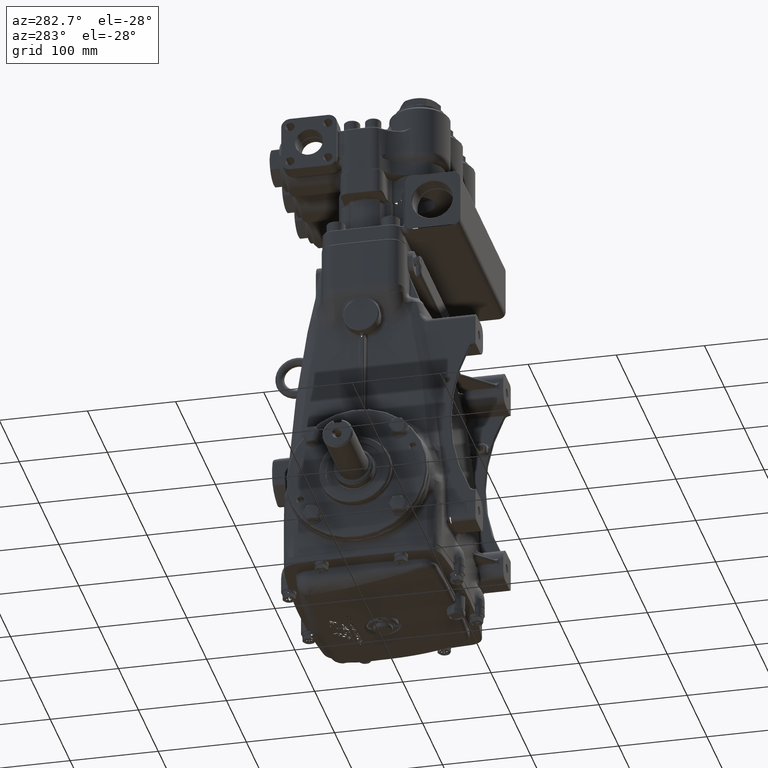
[diagram: clean part render]
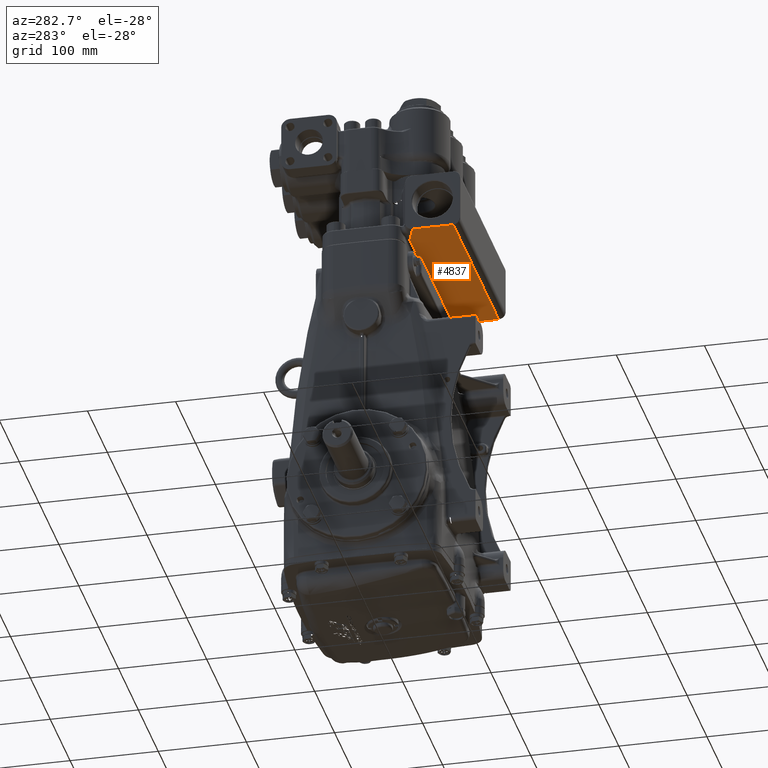
[diagram: same view with one face highlighted and labeled with its STEP entity id]
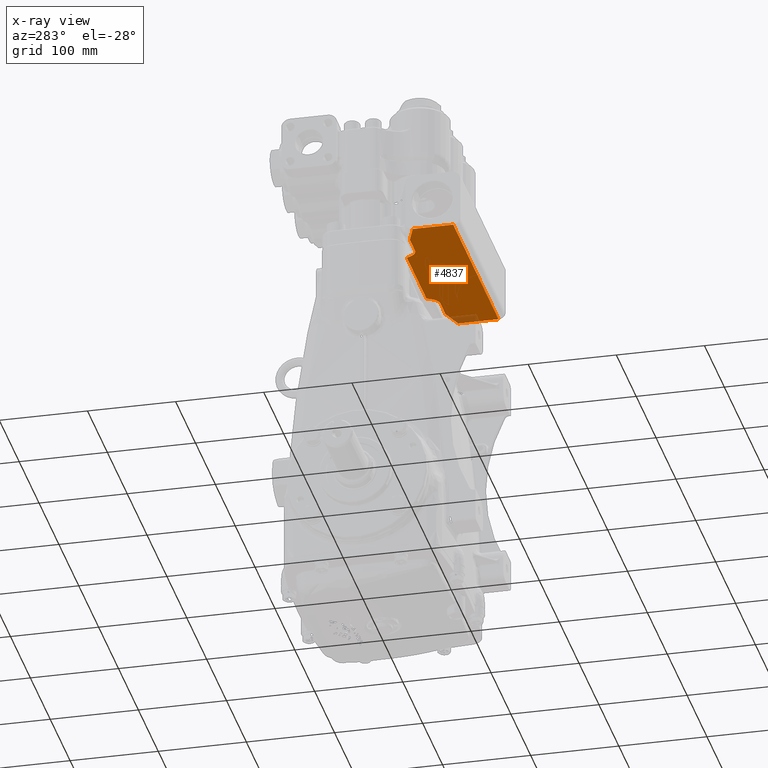
[diagram: x-ray of the same camera — body ghosted, the highlighted face saturated]
A machine part, auxiliary view. The second image highlights one B-rep face of the part: STEP entity #4837.
The next image is the same camera in x-ray: the body ghosted, the highlighted face saturated — about 3% of this face is hidden behind the body in this view.
In plain terms, the highlighted planar face has unit normal (0, 0, -1).
Its self-contained STEP definition (entity closure, byte-faithful):
#2245 = CARTESIAN_POINT ( 'NONE',  ( 1.899529946162071381, -1.507999999999999563, 12.14665354330708702 ) ) ;
#2764 = VECTOR ( 'NONE', #99863, 39.37007874015748143 ) ;
#2817 = CARTESIAN_POINT ( 'NONE',  ( 2.525204887489376659, -1.474299212598424669, 12.14665354330708702 ) ) ;
#4837 = ADVANCED_FACE ( 'NONE', ( #127277 ), #32326, .T. ) ;
#5422 = CIRCLE ( 'NONE', #82968, 0.5237007874015745523 ) ;
#5636 = VERTEX_POINT ( 'NONE', #127631 ) ;
#6317 = CARTESIAN_POINT ( 'NONE',  ( -1.899529946162071381, -1.578000000000000291, 12.14665354330708702 ) ) ;
#7455 = VERTEX_POINT ( 'NONE', #93261 ) ;
#7960 = DIRECTION ( 'NONE',  ( 1.000000000000000000, 3.904748746581762380E-16, -0.0000000000000000000 ) ) ;
#7992 = CARTESIAN_POINT ( 'NONE',  ( -2.525204887489376659, -1.474299212598425335, 12.14665354330708702 ) ) ;
#8950 = VERTEX_POINT ( 'NONE', #67890 ) ;
#11040 = ORIENTED_EDGE ( 'NONE', *, *, #51130, .T. ) ;
#12025 = LINE ( 'NONE', #54332, #35378 ) ;
#12054 = ORIENTED_EDGE ( 'NONE', *, *, #91010, .T. ) ;
#12247 = CARTESIAN_POINT ( 'NONE',  ( -4.500000000000001776, -2.346139744903616986, 12.14665354330708702 ) ) ;
#13395 = CARTESIAN_POINT ( 'NONE',  ( -4.499999999999995559, -4.466425196850395629, 12.14665354330708702 ) ) ;
#14324 = AXIS2_PLACEMENT_3D ( 'NONE', #74579, #116867, #21905 ) ;
#15300 = LINE ( 'NONE', #57595, #2764 ) ;
#15549 = CIRCLE ( 'NONE', #93090, 0.5237007874015745523 ) ;
#15555 = VERTEX_POINT ( 'NONE', #126395 ) ;
#15962 = VECTOR ( 'NONE', #20116, 39.37007874015748854 ) ;
#20116 = DIRECTION ( 'NONE',  ( 0.9396926207859083169, 0.3420201433256690460, 0.0000000000000000000 ) ) ;
#21347 = CARTESIAN_POINT ( 'NONE',  ( 4.514999999999995239, -1.507999999999998675, 12.14665354330708702 ) ) ;
#21591 = CARTESIAN_POINT ( 'NONE',  ( 2.525204887489377104, -1.997999999999999332, 12.14665354330708702 ) ) ;
#21905 = DIRECTION ( 'NONE',  ( -1.000000000000000000, 0.0000000000000000000, 0.0000000000000000000 ) ) ;
#22840 = VERTEX_POINT ( 'NONE', #70396 ) ;
#24314 = EDGE_CURVE ( 'NONE', #64799, #15555, #108185, .T. ) ;
#26602 = LINE ( 'NONE', #68858, #86732 ) ;
#27335 = CARTESIAN_POINT ( 'NONE',  ( 1.899529946162071381, -1.577999999999999625, 12.14665354330708702 ) ) ;
#29785 = LINE ( 'NONE', #72060, #57641 ) ;
#32326 = PLANE ( 'NONE',  #14324 ) ;
#34956 = EDGE_CURVE ( 'NONE', #80118, #65725, #5422, .T. ) ;
#35378 = VECTOR ( 'NONE', #96616, 39.37007874015748854 ) ;
#39072 = CIRCLE ( 'NONE', #116542, 0.07000000000000007605 ) ;
#39923 = DIRECTION ( 'NONE',  ( 0.0000000000000000000, -0.0000000000000000000, 1.000000000000000000 ) ) ;
#40515 = CARTESIAN_POINT ( 'NONE',  ( 4.514999999999995239, -4.151464566929133682, 12.14665354330708702 ) ) ;
#42582 = VECTOR ( 'NONE', #55710, 39.37007874015748143 ) ;
#43919 = EDGE_CURVE ( 'NONE', #8950, #112973, #47619, .T. ) ;
#45132 = DIRECTION ( 'NONE',  ( 0.0000000000000000000, -0.0000000000000000000, 1.000000000000000000 ) ) ;
#47619 = LINE ( 'NONE', #89917, #79550 ) ;
#48087 = EDGE_CURVE ( 'NONE', #22840, #8950, #29785, .T. ) ;
#48452 = AXIS2_PLACEMENT_3D ( 'NONE', #6317, #48638, #90944 ) ;
#48638 = DIRECTION ( 'NONE',  ( -0.0000000000000000000, 0.0000000000000000000, -1.000000000000000000 ) ) ;
#50928 = EDGE_CURVE ( 'NONE', #113162, #80118, #60663, .T. ) ;
#51130 = EDGE_CURVE ( 'NONE', #110238, #7455, #12025, .T. ) ;
#51208 = ORIENTED_EDGE ( 'NONE', *, *, #112342, .T. ) ;
#52719 = CARTESIAN_POINT ( 'NONE',  ( -2.071666701617698170, -1.736149606299210113, 12.14665354330708702 ) ) ;
#53888 = EDGE_CURVE ( 'NONE', #7455, #76682, #15549, .T. ) ;
#54332 = CARTESIAN_POINT ( 'NONE',  ( 3.864744036588173337, -4.841850652368357544, 12.14665354330708702 ) ) ;
#55710 = DIRECTION ( 'NONE',  ( -2.230079994827970186E-16, 1.000000000000000000, 0.0000000000000000000 ) ) ;
#55804 = CARTESIAN_POINT ( 'NONE',  ( -3.543493912062626983, -1.998000000000001553, 12.14665354330708702 ) ) ;
#57265 = EDGE_CURVE ( 'NONE', #76682, #22840, #15300, .T. ) ;
#57595 = CARTESIAN_POINT ( 'NONE',  ( 4.514999999999993463, -1.997999999999998222, 12.14665354330708702 ) ) ;
#57641 = VECTOR ( 'NONE', #114326, 39.37007874015748854 ) ;
#60663 = LINE ( 'NONE', #102932, #115047 ) ;
#63639 = DIRECTION ( 'NONE',  ( 1.000000000000000000, 1.438170532232914042E-16, -0.0000000000000000000 ) ) ;
#64194 = ORIENTED_EDGE ( 'NONE', *, *, #43919, .T. ) ;
#64799 = VERTEX_POINT ( 'NONE', #76959 ) ;
#65725 = VERTEX_POINT ( 'NONE', #52719 ) ;
#66648 = EDGE_CURVE ( 'NONE', #92477, #110238, #39072, .T. ) ;
#67890 = CARTESIAN_POINT ( 'NONE',  ( 4.499999999999993783, -2.346139744903616098, 12.14665354330708702 ) ) ;
#68858 = CARTESIAN_POINT ( 'NONE',  ( -1.607244036588244773, -0.9317459542816461937, 12.14665354330708702 ) ) ;
#69597 = DIRECTION ( 'NONE',  ( -0.0000000000000000000, 0.0000000000000000000, -1.000000000000000000 ) ) ;
#70396 = CARTESIAN_POINT ( 'NONE',  ( 3.543493912062612328, -1.997999999999998444, 12.14665354330708702 ) ) ;
#71572 = VERTEX_POINT ( 'NONE', #12247 ) ;
#72060 = CARTESIAN_POINT ( 'NONE',  ( 5.194691942078395464, -2.598986933804735333, 12.14665354330708702 ) ) ;
#72805 = LINE ( 'NONE', #115089, #15962 ) ;
#74579 = CARTESIAN_POINT ( 'NONE',  ( 4.514999999999995239, -4.466425196850393853, 12.14665354330708702 ) ) ;
#76682 = VERTEX_POINT ( 'NONE', #21591 ) ;
#76775 = CARTESIAN_POINT ( 'NONE',  ( -2.525204887489377104, -1.997999999999999776, 12.14665354330708702 ) ) ;
#76959 = CARTESIAN_POINT ( 'NONE',  ( -1.960151724426981490, -1.543000000000000149, 12.14665354330708702 ) ) ;
#77441 = ORIENTED_EDGE ( 'NONE', *, *, #50928, .T. ) ;
#78460 = EDGE_CURVE ( 'NONE', #65725, #64799, #26602, .T. ) ;
#79520 = CARTESIAN_POINT ( 'NONE',  ( 4.499999999999993783, -4.151464566929133682, 12.14665354330708702 ) ) ;
#79550 = VECTOR ( 'NONE', #132176, 39.37007874015748143 ) ;
#80118 = VERTEX_POINT ( 'NONE', #76775 ) ;
#82196 = DIRECTION ( 'NONE',  ( -1.000000000000000000, 0.0000000000000000000, 0.0000000000000000000 ) ) ;
#82792 = DIRECTION ( 'NONE',  ( -1.000000000000000000, 0.0000000000000000000, 0.0000000000000000000 ) ) ;
#82968 = AXIS2_PLACEMENT_3D ( 'NONE', #7992, #39923, #82196 ) ;
#83522 = VECTOR ( 'NONE', #63639, 39.37007874015748143 ) ;
#86732 = VECTOR ( 'NONE', #111133, 39.37007874015748854 ) ;
#87427 = DIRECTION ( 'NONE',  ( -1.000000000000000000, 0.0000000000000000000, 0.0000000000000000000 ) ) ;
#87545 = ORIENTED_EDGE ( 'NONE', *, *, #48087, .T. ) ;
#88012 = VECTOR ( 'NONE', #82792, 39.37007874015748143 ) ;
#89917 = CARTESIAN_POINT ( 'NONE',  ( 4.499999999999993783, -4.466425196850393853, 12.14665354330708702 ) ) ;
#90944 = DIRECTION ( 'NONE',  ( -1.000000000000000000, 0.0000000000000000000, 0.0000000000000000000 ) ) ;
#91010 = EDGE_CURVE ( 'NONE', #5636, #71572, #108377, .T. ) ;
#92477 = VERTEX_POINT ( 'NONE', #2245 ) ;
#93090 = AXIS2_PLACEMENT_3D ( 'NONE', #2817, #45132, #87427 ) ;
#93261 = CARTESIAN_POINT ( 'NONE',  ( 2.071666701617698170, -1.736149606299209447, 12.14665354330708702 ) ) ;
#93716 = ORIENTED_EDGE ( 'NONE', *, *, #130067, .T. ) ;
#94957 = ORIENTED_EDGE ( 'NONE', *, *, #24314, .T. ) ;
#96371 = EDGE_LOOP ( 'NONE', ( #87545, #64194, #93716, #12054, #51208, #77441, #116235, #130582, #94957, #121482, #128631, #11040, #104734, #115188 ) ) ;
#96616 = DIRECTION ( 'NONE',  ( 0.4999999999999896194, -0.8660254037844445918, -0.0000000000000000000 ) ) ;
#99863 = DIRECTION ( 'NONE',  ( 1.000000000000000000, 5.857123119872637654E-16, -0.0000000000000000000 ) ) ;
#102682 = EDGE_CURVE ( 'NONE', #15555, #92477, #116331, .T. ) ;
#102932 = CARTESIAN_POINT ( 'NONE',  ( 4.514999999999994351, -1.997999999999997112, 12.14665354330708702 ) ) ;
#104734 = ORIENTED_EDGE ( 'NONE', *, *, #53888, .T. ) ;
#108185 = CIRCLE ( 'NONE', #48452, 0.06999999999999952094 ) ;
#108377 = LINE ( 'NONE', #13395, #42582 ) ;
#110238 = VERTEX_POINT ( 'NONE', #112672 ) ;
#111133 = DIRECTION ( 'NONE',  ( 0.4999999999999942268, 0.8660254037844419273, -0.0000000000000000000 ) ) ;
#111866 = DIRECTION ( 'NONE',  ( -1.000000000000000000, 0.0000000000000000000, 0.0000000000000000000 ) ) ;
#112342 = EDGE_CURVE ( 'NONE', #71572, #113162, #72805, .T. ) ;
#112672 = CARTESIAN_POINT ( 'NONE',  ( 1.960151724426981712, -1.542999999999999261, 12.14665354330708702 ) ) ;
#112973 = VERTEX_POINT ( 'NONE', #79520 ) ;
#113162 = VERTEX_POINT ( 'NONE', #55804 ) ;
#114326 = DIRECTION ( 'NONE',  ( 0.9396926207859083169, -0.3420201433256690460, 0.0000000000000000000 ) ) ;
#115047 = VECTOR ( 'NONE', #7960, 39.37007874015748143 ) ;
#115089 = CARTESIAN_POINT ( 'NONE',  ( 2.778998718603780560, 0.3031991239299913210, 12.14665354330708702 ) ) ;
#115188 = ORIENTED_EDGE ( 'NONE', *, *, #57265, .T. ) ;
#116235 = ORIENTED_EDGE ( 'NONE', *, *, #34956, .T. ) ;
#116331 = LINE ( 'NONE', #21347, #83522 ) ;
#116542 = AXIS2_PLACEMENT_3D ( 'NONE', #27335, #69597, #111866 ) ;
#116867 = DIRECTION ( 'NONE',  ( 0.0000000000000000000, 0.0000000000000000000, -1.000000000000000000 ) ) ;
#121482 = ORIENTED_EDGE ( 'NONE', *, *, #102682, .T. ) ;
#126395 = CARTESIAN_POINT ( 'NONE',  ( -1.899529946162070715, -1.508000000000000229, 12.14665354330708702 ) ) ;
#127277 = FACE_OUTER_BOUND ( 'NONE', #96371, .T. ) ;
#127631 = CARTESIAN_POINT ( 'NONE',  ( -4.499999999999994671, -4.151464566929133682, 12.14665354330708702 ) ) ;
#128631 = ORIENTED_EDGE ( 'NONE', *, *, #66648, .T. ) ;
#130067 = EDGE_CURVE ( 'NONE', #112973, #5636, #135458, .T. ) ;
#130582 = ORIENTED_EDGE ( 'NONE', *, *, #78460, .T. ) ;
#132176 = DIRECTION ( 'NONE',  ( -2.230079994827970186E-16, -1.000000000000000000, 0.0000000000000000000 ) ) ;
#135458 = LINE ( 'NONE', #40515, #88012 ) ;